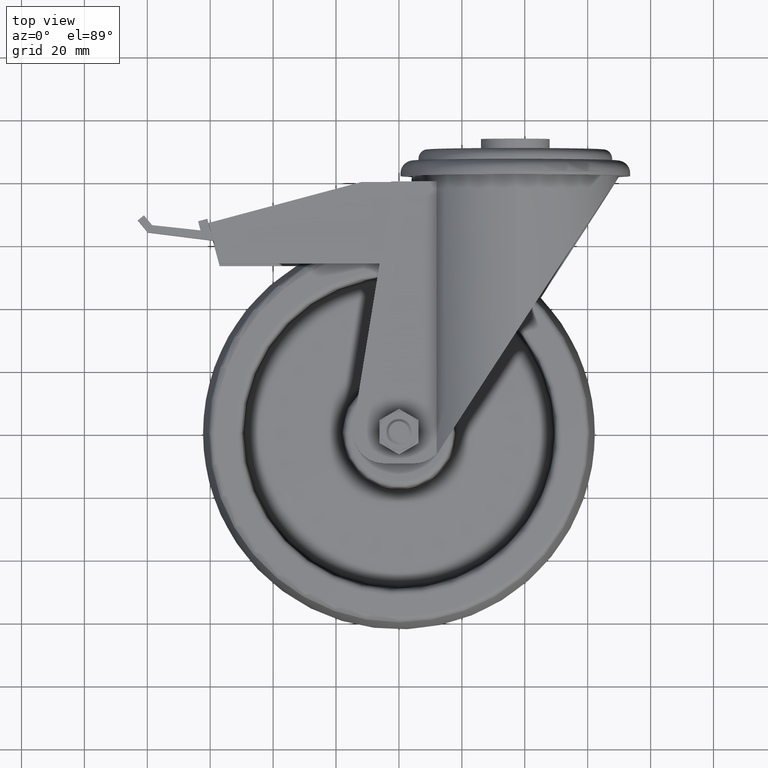
[diagram: clean part render]
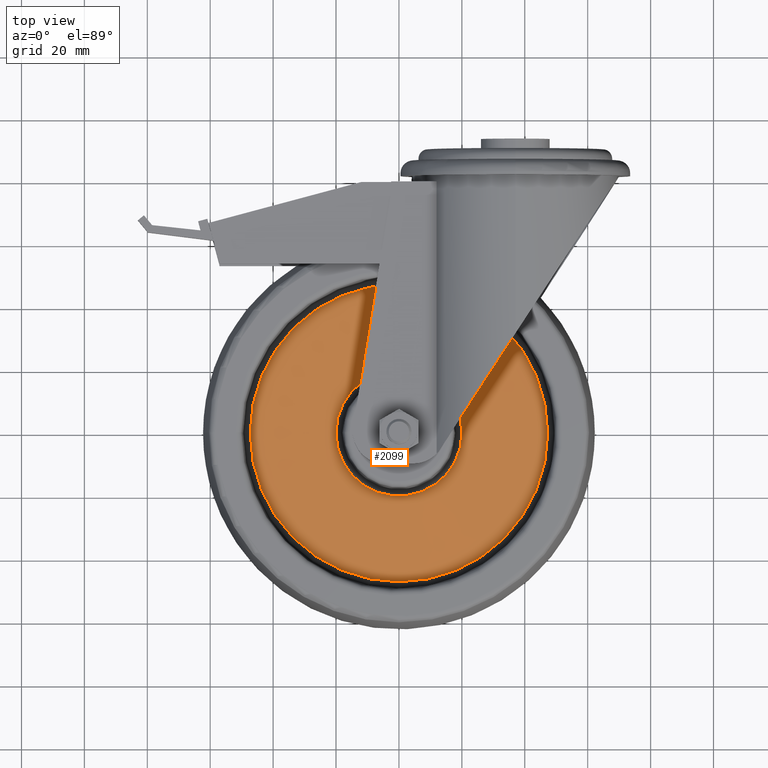
[diagram: same view with one face highlighted and labeled with its STEP entity id]
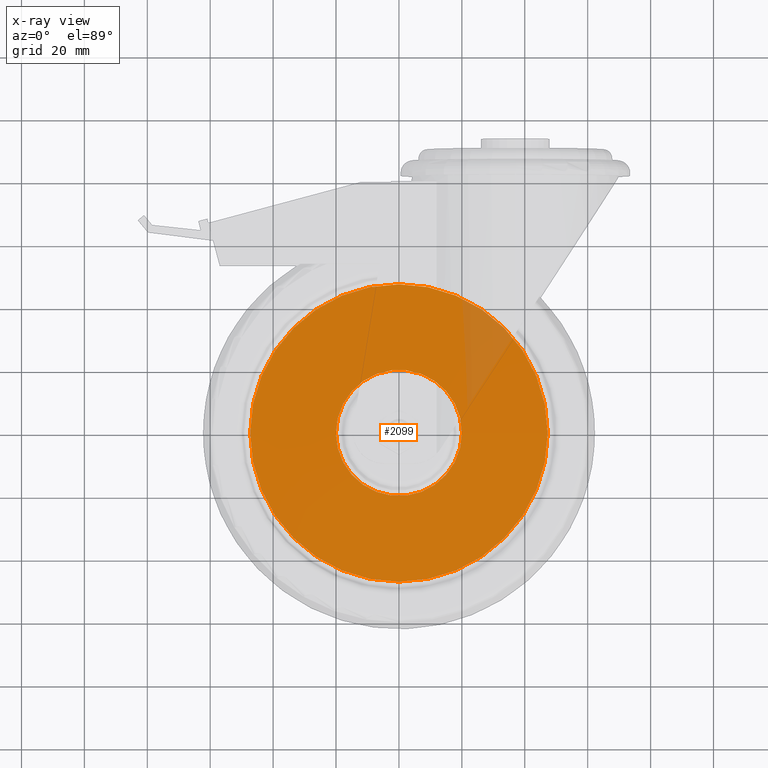
[diagram: x-ray of the same camera — body ghosted, the highlighted face saturated]
A machine part, top view. The second image highlights one B-rep face of the part: STEP entity #2099.
The next image is the same camera in x-ray: the body ghosted, the highlighted face saturated — about 5% of this face is hidden behind the body in this view.
In plain terms, the highlighted conical surface has half-angle 88 deg.
Its self-contained STEP definition (entity closure, byte-faithful):
#98=CONICAL_SURFACE('',#2434,20.0330560728676,1.53588974175501);
#351=FACE_OUTER_BOUND('',#498,.T.);
#498=EDGE_LOOP('',(#1899,#1900,#1901,#1902,#1903,#1904));
#593=CIRCLE('',#2432,20.0330560728676);
#594=CIRCLE('',#2433,20.0330560728676);
#595=CIRCLE('',#2435,47.2774853659318);
#596=CIRCLE('',#2436,47.2774853659318);
#755=LINE('',#3778,#888);
#888=VECTOR('',#3016,20.0330560728676);
#1058=VERTEX_POINT('',#3768);
#1059=VERTEX_POINT('',#3770);
#1060=VERTEX_POINT('',#3774);
#1061=VERTEX_POINT('',#3775);
#1340=EDGE_CURVE('',#1058,#1059,#593,.T.);
#1341=EDGE_CURVE('',#1059,#1058,#594,.T.);
#1342=EDGE_CURVE('',#1060,#1061,#595,.T.);
#1343=EDGE_CURVE('',#1061,#1060,#596,.T.);
#1344=EDGE_CURVE('',#1060,#1059,#755,.T.);
#1899=ORIENTED_EDGE('',*,*,#1342,.T.);
#1900=ORIENTED_EDGE('',*,*,#1343,.T.);
#1901=ORIENTED_EDGE('',*,*,#1344,.T.);
#1902=ORIENTED_EDGE('',*,*,#1340,.F.);
#1903=ORIENTED_EDGE('',*,*,#1341,.F.);
#1904=ORIENTED_EDGE('',*,*,#1344,.F.);
#2099=ADVANCED_FACE('',(#351),#98,.T.);
#2432=AXIS2_PLACEMENT_3D('',#3771,#3006,#3007);
#2433=AXIS2_PLACEMENT_3D('',#3772,#3008,#3009);
#2434=AXIS2_PLACEMENT_3D('',#3773,#3010,#3011);
#2435=AXIS2_PLACEMENT_3D('',#3776,#3012,#3013);
#2436=AXIS2_PLACEMENT_3D('',#3777,#3014,#3015);
#3006=DIRECTION('center_axis',(0.,0.,1.));
#3007=DIRECTION('ref_axis',(1.,0.,0.));
#3008=DIRECTION('center_axis',(0.,0.,1.));
#3009=DIRECTION('ref_axis',(1.,0.,0.));
#3010=DIRECTION('center_axis',(0.,0.,-1.));
#3011=DIRECTION('ref_axis',(-1.,0.,0.));
#3012=DIRECTION('center_axis',(0.,0.,1.));
#3013=DIRECTION('ref_axis',(1.,0.,0.));
#3014=DIRECTION('center_axis',(0.,0.,1.));
#3015=DIRECTION('ref_axis',(1.,0.,0.));
#3016=DIRECTION('',(-0.999390827019096,1.22390077740616E-16,0.0348994967025011));
#3768=CARTESIAN_POINT('',(-20.0330560728676,-2.45334179967768E-15,4.05043026666414));
#3770=CARTESIAN_POINT('',(20.0330560728676,0.,4.05043026666414));
#3771=CARTESIAN_POINT('Origin',(0.,0.,4.05043026666414));
#3772=CARTESIAN_POINT('Origin',(0.,0.,4.05043026666414));
#3773=CARTESIAN_POINT('Origin',(0.,0.,4.05043026666414));
#3774=CARTESIAN_POINT('',(47.2774853659318,0.,3.09903383138682));
#3775=CARTESIAN_POINT('',(-47.2774853659318,-5.78982211251242E-15,3.09903383138682));
#3776=CARTESIAN_POINT('Origin',(0.,0.,3.09903383138682));
#3777=CARTESIAN_POINT('Origin',(0.,0.,3.09903383138682));
#3778=CARTESIAN_POINT('',(20.0330560728676,-2.45334179967768E-15,4.05043026666414));